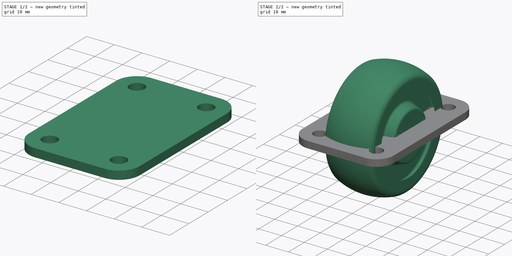
[diagram: build sequence overview — one tinted view per stage of 2, left to right]
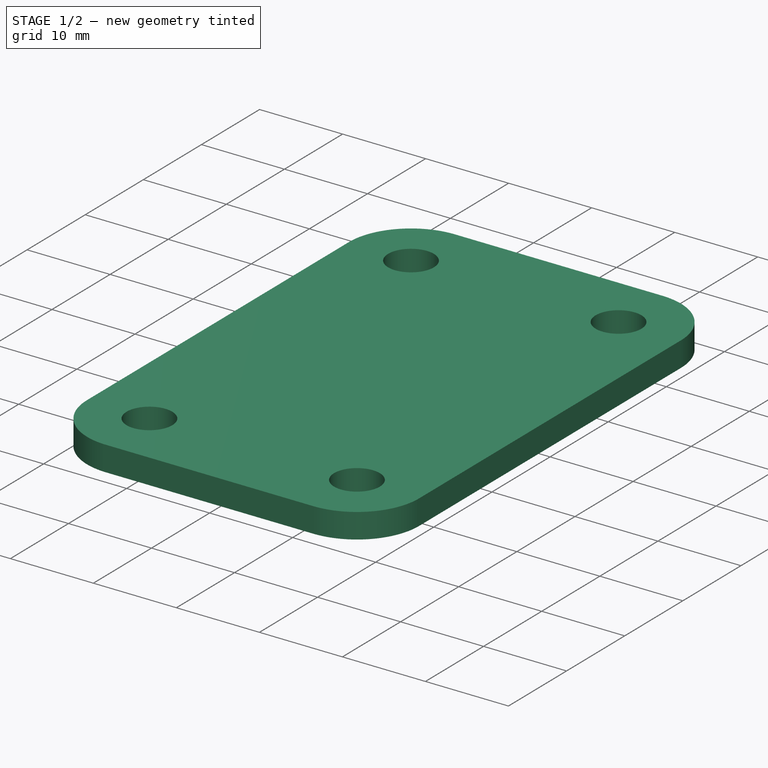
[diagram: stage 1 of 2 — iso view after this stage's code; geometry added in this stage tinted green]
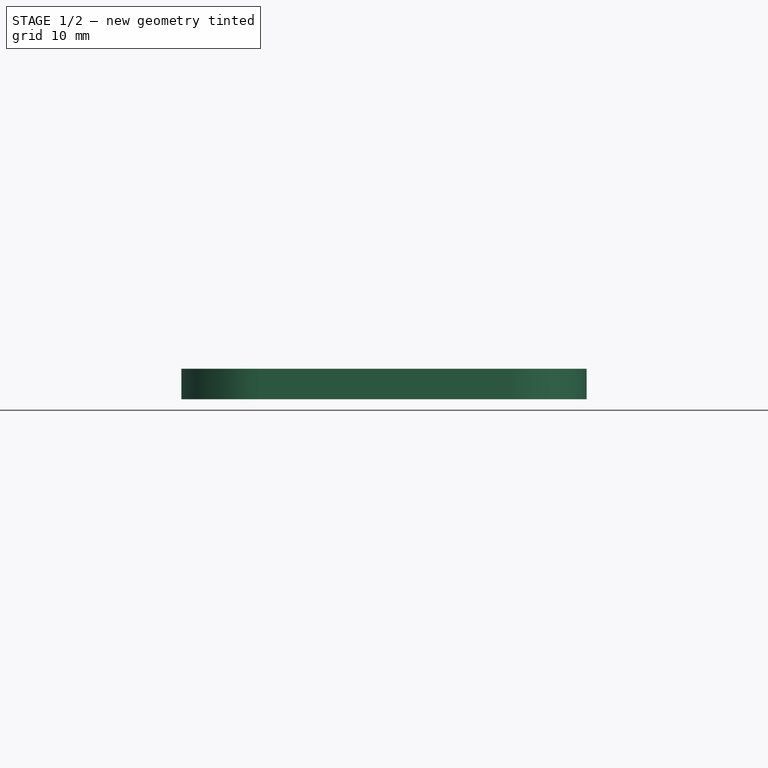
[diagram: stage 1 of 2 — front view after this stage's code; geometry added in this stage tinted green]
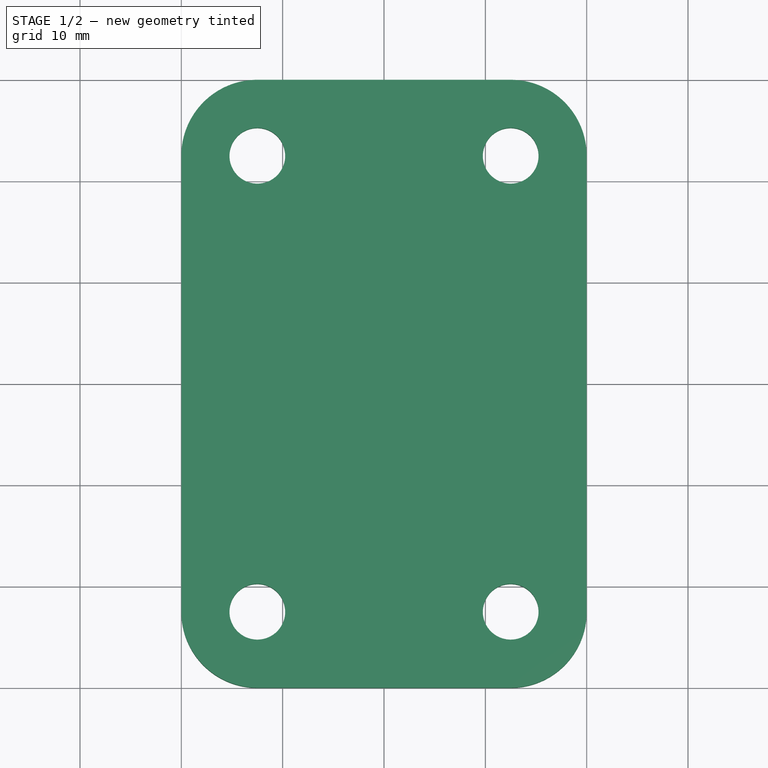
[diagram: stage 1 of 2 — top view after this stage's code; geometry added in this stage tinted green]
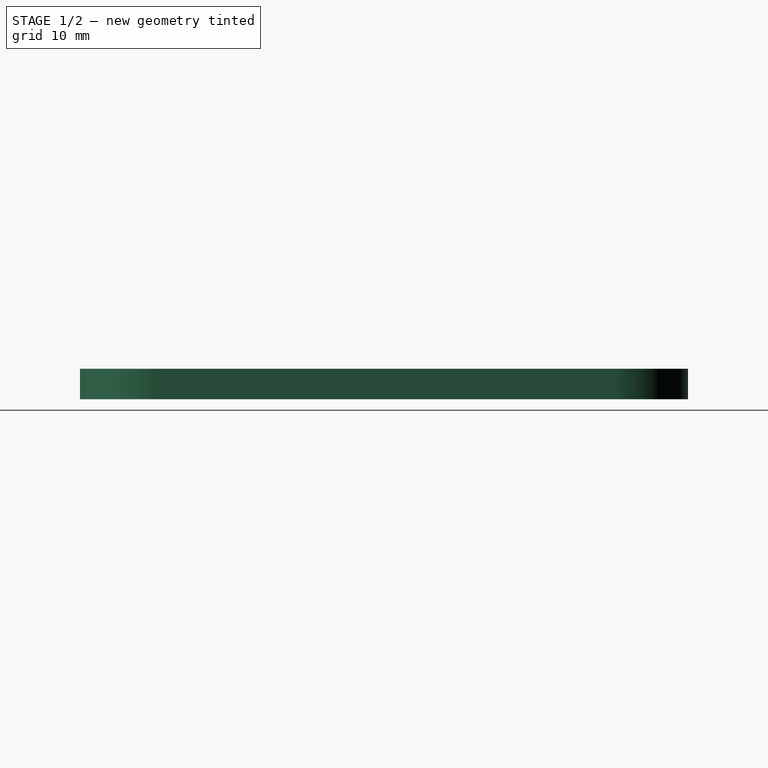
[diagram: stage 1 of 2 — right view after this stage's code; geometry added in this stage tinted green]
FCSTD DOCUMENT  (FreeCAD 0.21R32532 (Git))
Label: wheel25x45x64
License: All rights reserved
LicenseURL: http://en.wikipedia.org/wiki/All_rights_reserved
objects: Sketcher::SketchObject×3, Part::Mirroring×2, Part::Compound×2, PartDesign::Body×2, PartDesign::Revolution×1, PartDesign::Mirrored×1, Spreadsheet::Sheet×1, PartDesign::SubShapeBinder×1, PartDesign::Pad×1, PartDesign::Hole×1
note: 17 computed .brp shape members not serialized (recipe doc carries the construction recipe); baked Part::Feature solids carry a one-line shape summary decoded from their .brp

FEATURE [PartDesign::Body] Body
  Group = -> [Sketch001,Revolution,Mirrored]
  Origin = -> Origin
  Tip = -> Mirrored
FEATURE [Spreadsheet::Sheet] Spreadsheet  label="Properties"
  cells = B2(total_height)==64.5 mm; C2(wheel_d)==50 mm; D2(wheel_width)==21.5 mm
FEATURE [PartDesign::SubShapeBinder] Binder
  BindCopyOnChange = 0
  BindMode = 0
  ClaimChildren = false
  Context = -> Body001 [Binder.]
  Fuse = false
  MakeFace = false
  OffsetFill = false
  OffsetIntersection = false
  OffsetJoinType = 0
  OffsetOpenResult = false
  PartialLoad = false
  Relative = true
  Support = -> [Compound001]
  _Version = 2
FEATURE [Sketcher::SketchObject] Sketch002
  ExternalGeometry = -> [Binder]
  FullyConstrained = true
  MapMode = 5
  Support = -> [XY_Plane001]
  sketch-geometry (10):
    g0: ArcOfCircle CenterX=-12.5 CenterY=-22.5 CenterZ=0 NormalX=0 NormalY=0 NormalZ=1 AngleXU=0 Radius=7.5 StartAngle=3.14159 EndAngle=4.71239
    g1: LineSegment StartX=-20 StartY=-22.5 StartZ=0 EndX=-20 EndY=22.5 EndZ=0
    g2: ArcOfCircle CenterX=-12.5 CenterY=22.5 CenterZ=0 NormalX=0 NormalY=0 NormalZ=1 AngleXU=0 Radius=7.5 StartAngle=1.5708 EndAngle=3.14159
    g3: LineSegment StartX=-12.5 StartY=30 StartZ=0 EndX=12.5 EndY=30 EndZ=0
    g4: ArcOfCircle CenterX=12.5 CenterY=22.5 CenterZ=0 NormalX=0 NormalY=0 NormalZ=1 AngleXU=0 Radius=7.5 StartAngle=1e-16 EndAngle=1.5708
    g5: LineSegment StartX=20 StartY=22.5 StartZ=0 EndX=20 EndY=-22.5 EndZ=0
    g6: ArcOfCircle CenterX=12.5 CenterY=-22.5 CenterZ=0 NormalX=0 NormalY=0 NormalZ=1 AngleXU=0 Radius=7.5 StartAngle=4.71239 EndAngle=6.28319
    g7: LineSegment StartX=12.5 StartY=-30 StartZ=0 EndX=-12.5 EndY=-30 EndZ=0
    g8: GeomPoint X=-20 Y=-30 Z=0
    g9: GeomPoint X=20 Y=30 Z=0
  constraints (22):
    c: Tangent(g0,g1) = 1.5708
    c: Tangent(g1,g2) = 1.5708
    c: Tangent(g2,g3) = 1.5708
    c: Tangent(g3,g4) = 1.5708
    c: Tangent(g4,g5) = 1.5708
    c: Tangent(g5,g6) = 1.5708
    c: Tangent(g6,g7) = 1.5708
    c: Tangent(g7,g0) = 1.5708
    c: Horizontal(g3)
    c: Horizontal(g7)
    c: Vertical(g1)
    c: Vertical(g5)
    c: Equal(g0,g2)
    c: Equal(g2,g4)
    c: Equal(g4,g6)
    c: PointOnObject(g8,g1)
    c: PointOnObject(g8,g7)
    c: PointOnObject(g9,g3)
    c: PointOnObject(g9,g5)
    c: Symmetric(g9,g8,g-1)
    c: Coincident(g4,g-3)
    c: Diameter(g4) = 15
FEATURE [PartDesign::Pad] Pad
  Direction = (0,0,1)
  Length = 3
  Length2 = 10
  Profile = -> Sketch002
  ReferenceAxis = -> Sketch002 [N_Axis]
  Type = 0
FEATURE [PartDesign::Hole] Hole
  BaseFeature = -> Pad
  CustomThreadClearance = 0
  Depth = 25
  DepthType = 0
  Diameter = 5.5
  DrillForDepth = false
  DrillPoint = 1
  DrillPointAngle = 118
  HoleCutCountersinkAngle = 90
  HoleCutCustomValues = false
  HoleCutDepth = 0
  HoleCutDiameter = 6.1
  HoleCutType = 0
  ModelThread = false
  Profile = -> Binder
  Reversed = true
  Tapered = false
  TaperedAngle = 90
  ThreadClass = 0
  ThreadDepth = 25
  ThreadDepthType = 0
  ThreadDirection = 0
  ThreadFit = 0
  ThreadSize = 0
  ThreadType = 0
  Threaded = false
  UseCustomThreadClearance = false
FEATURE [PartDesign::Body] Body001
  Group = -> [Sketch002,Binder,Pad,Hole]
  Origin = -> Origin001
  Tip = -> Hole
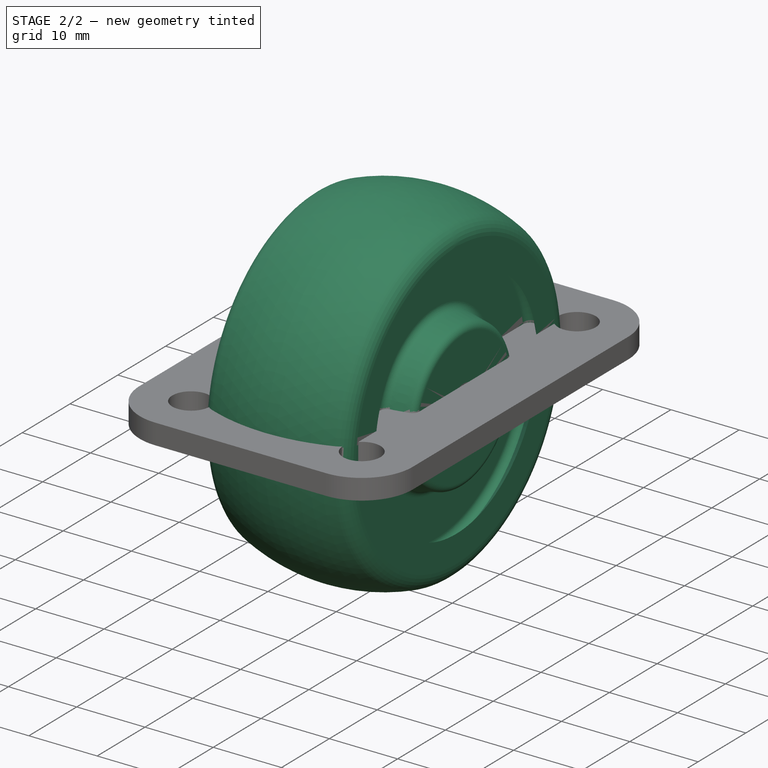
[diagram: stage 2 of 2 — iso view after this stage's code; geometry added in this stage tinted green]
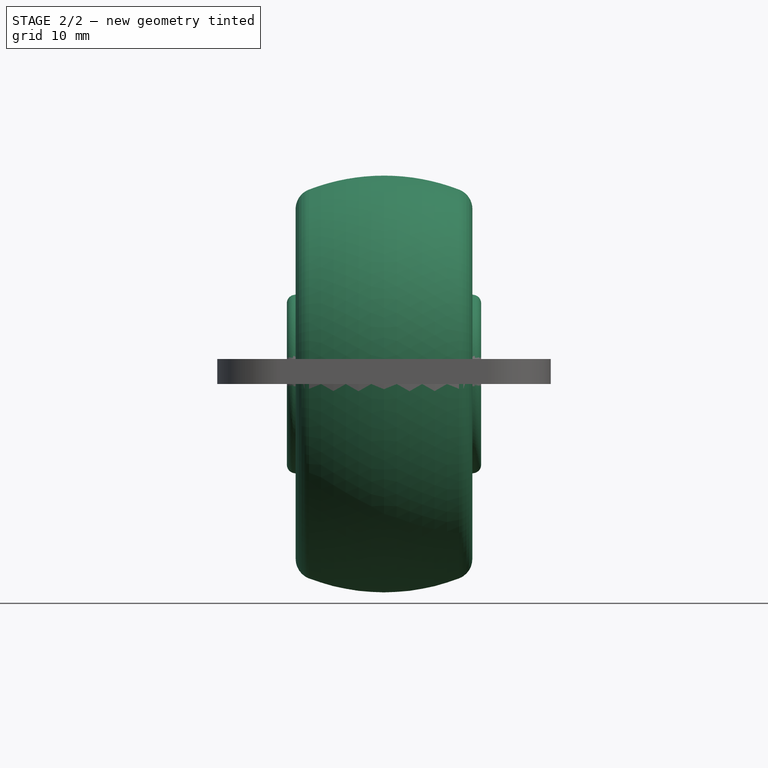
[diagram: stage 2 of 2 — front view after this stage's code; geometry added in this stage tinted green]
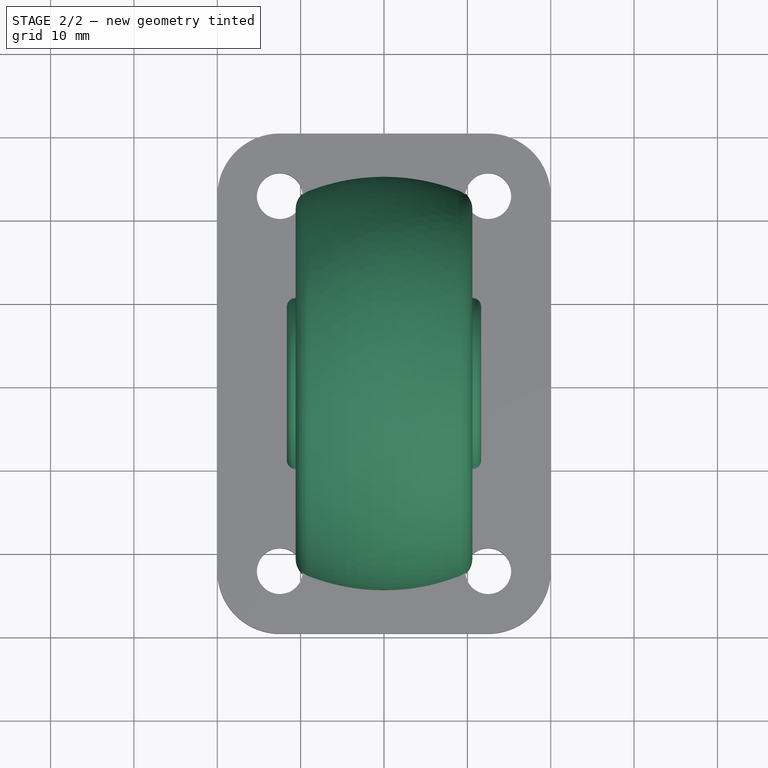
[diagram: stage 2 of 2 — top view after this stage's code; geometry added in this stage tinted green]
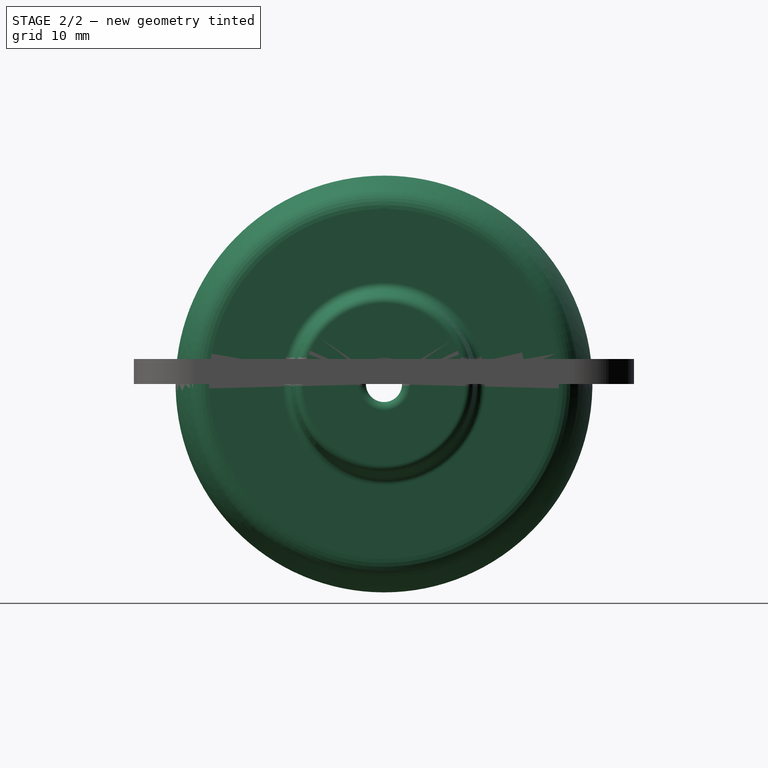
[diagram: stage 2 of 2 — right view after this stage's code; geometry added in this stage tinted green]
FEATURE [Sketcher::SketchObject] Sketch
  FullyConstrained = true
  sketch-geometry (1):
    g0: Circle CenterX=12.5 CenterY=22.5 CenterZ=0 NormalX=0 NormalY=0 NormalZ=1 AngleXU=0 Radius=2.75
  constraints (3):
    c: DistanceX(g0) = 12.5
    c: DistanceY(g0) = 22.5
    c: Diameter(g0) = 5.5
FEATURE [Part::Mirroring] Part__Mirroring  label="Sketch (Mirror #1)"
  Base = (0,0,0)
  Normal = (1,0,0)
  Source = -> Sketch
FEATURE [Part::Compound] Compound
  Links = -> [Part__Mirroring,Sketch]
FEATURE [Part::Mirroring] Part__Mirroring001  label="Compound (Mirror #2)"
  Base = (0,0,0)
  Normal = (0,1,0)
  Source = -> Compound
FEATURE [Part::Compound] Compound001  label="fix_holes"
  Links = -> [Part__Mirroring001,Compound]
FEATURE [Sketcher::SketchObject] Sketch001
  FullyConstrained = false
  MapMode = 5
  Placement = pos=(0,0,0) rot=(1,0,0;1.5708rad)
  Support = -> [XZ_Plane]
  sketch-geometry (13):
    g0: ArcOfCircle CenterX=0 CenterY=0 CenterZ=0 NormalX=0 NormalY=0 NormalZ=1 AngleXU=0 Radius=25 StartAngle=1.20253 EndAngle=1.5708
    g1: ArcOfCircle CenterX=8.1 CenterY=20.9914 CenterZ=0 NormalX=0 NormalY=0 NormalZ=1 AngleXU=0 Radius=2.5 StartAngle=0 EndAngle=1.20253
    g2: LineSegment StartX=10.6 StartY=20.9914 StartZ=0 EndX=10.6 EndY=16.9914 EndZ=0
    g3: ArcOfCircle CenterX=8.6 CenterY=18.4577 CenterZ=0 NormalX=0 NormalY=0 NormalZ=1 AngleXU=0 Radius=1 StartAngle=1.61686 EndAngle=3.14159
    g4: ArcOfCircle CenterX=8.6 CenterY=12.1577 CenterZ=0 NormalX=0 NormalY=0 NormalZ=1 AngleXU=0 Radius=1 StartAngle=3.14159 EndAngle=4.51182
    g5: ArcOfCircle CenterX=10.65 CenterY=9.7 CenterZ=0 NormalX=0 NormalY=0 NormalZ=1 AngleXU=0 Radius=1 StartAngle=0 EndAngle=1.37023
    g6: ArcOfCircle CenterX=10.65 CenterY=3.16511 CenterZ=0 NormalX=0 NormalY=0 NormalZ=1 AngleXU=0 Radius=1 StartAngle=4.71239 EndAngle=6.28319
    g7: LineSegment StartX=10.65 StartY=2.16511 StartZ=0 EndX=0 EndY=2.16511 EndZ=0
    g8: LineSegment StartX=11.65 StartY=3.16511 StartZ=0 EndX=11.65 EndY=9.7 EndZ=0
    g9: LineSegment StartX=10.8492 StartY=10.68 StartZ=0 EndX=8.40077 EndY=11.1777 EndZ=0
    g10: LineSegment StartX=7.6 StartY=12.1577 StartZ=0 EndX=7.6 EndY=18.4577 EndZ=0
    g11: LineSegment StartX=0 StartY=2.16511 StartZ=0 EndX=1.5e-15 EndY=25 EndZ=0
    g12: LineSegment StartX=8.55395 StartY=19.4566 StartZ=0 EndX=10.6 EndY=16.9914 EndZ=0
  constraints (32):
    c: Coincident(g0,g-1)
    c: PointOnObject(g0,g-2)
    c: Vertical(g2)
    c: PointOnObject(g7,g-2)
    c: Horizontal(g7)
    c: Vertical(g8)
    c: Vertical(g10)
    c: Tangent(g10,g4) = 1.5708
    c: Tangent(g9,g4) = 1.5708
    c: Tangent(g9,g5) = -1.5708
    c: Tangent(g8,g5) = -1.5708
    c: Tangent(g8,g6) = -1.5708
    c: Tangent(g7,g6) = 1.5708
    c: Tangent(g10,g3) = 1.5708
    c: Tangent(g2,g1) = 1.5708
    c: Tangent(g1,g0) = -1.5708
    c: Equal(g5,g4)
    c: Equal(g5,g3)
    c: Equal(g5,g6)
    c: Diameter(g5) = 2
    c: Diameter(g1) = 5
    c: DistanceX(g3,g2) = 3
    c: DistanceY(g0) = 25
    c: DistanceX(g1) = 10.6
    c: DistanceX(g6) = 11.65
    c: DistanceY(g2,g2) = 4
    c: DistanceY(g10,g10) = 6.3
    c: DistanceY(g5) = 9.7
    c: Coincident(g11,g7)
    c: Coincident(g11,g0)
    c: Coincident(g12,g3)
    c: Coincident(g12,g2)
FEATURE [PartDesign::Revolution] Revolution
  Angle = 360
  Axis = (1,0,0)
  Base = (0,0,0)
  Placement = pos=(0,0,0) rot=(1,0,0;1.5708rad)
  Profile = -> Sketch001
  ReferenceAxis = -> Sketch001 [H_Axis]
FEATURE [PartDesign::Mirrored] Mirrored
  BaseFeature = -> Revolution
  MirrorPlane = -> Sketch001 [V_Axis]
  Originals = -> [Revolution]
  Placement = pos=(0,0,0) rot=(1,0,0;1.5708rad)
  Refine = true
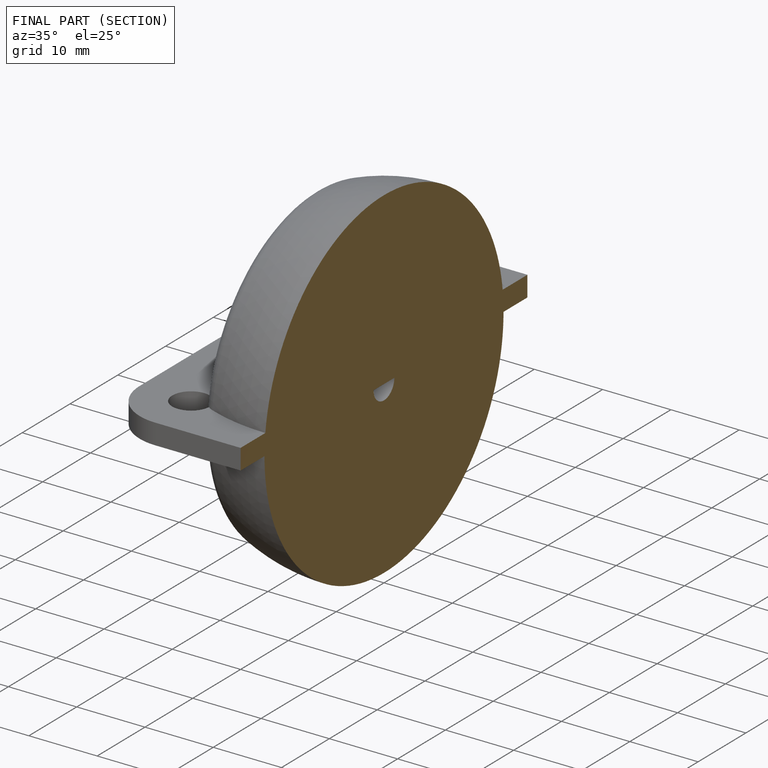
[diagram: finished part — half-section view (interior)]
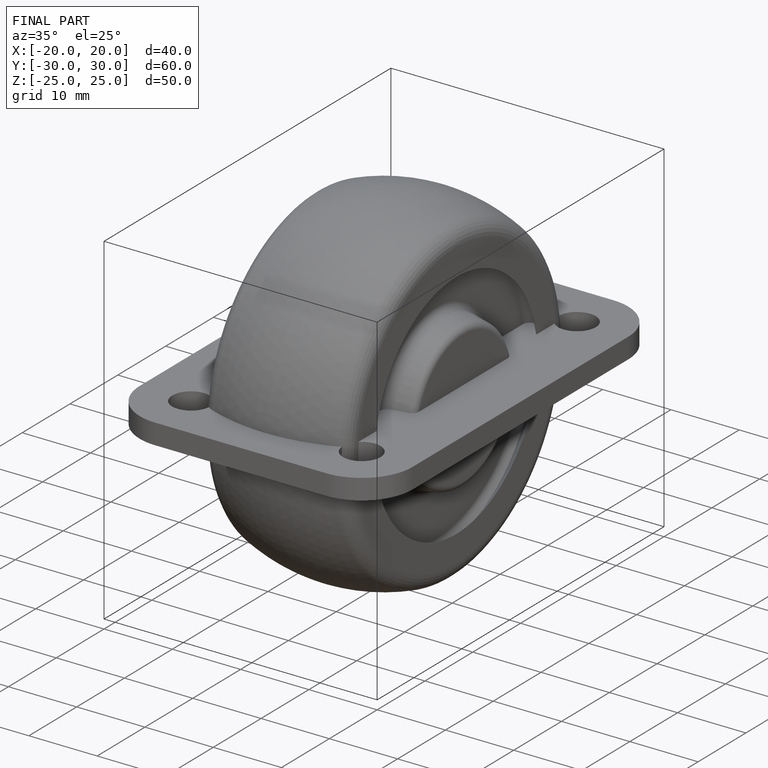
[diagram: finished part — iso view with bounding-box wireframe]
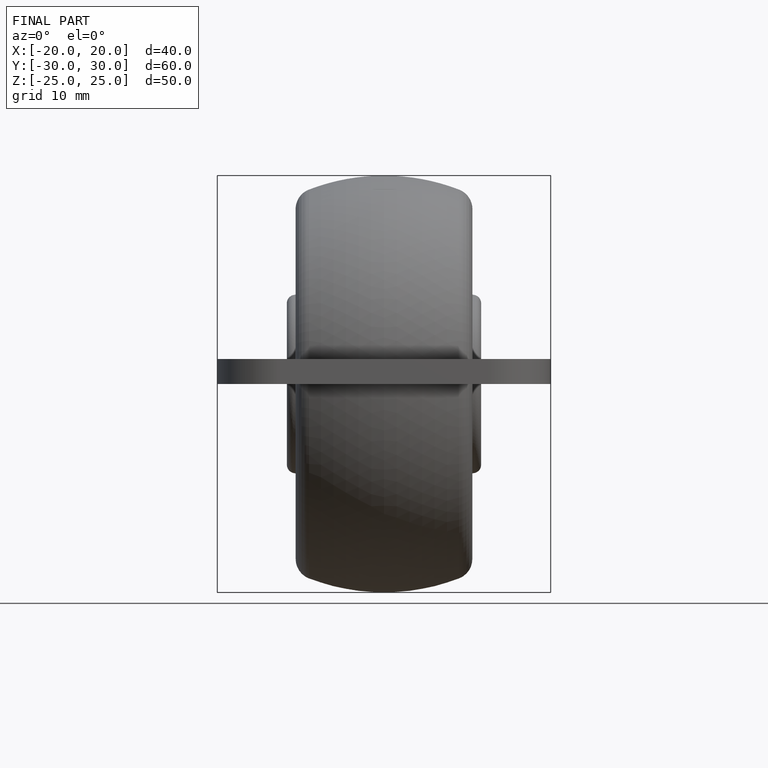
[diagram: finished part — front view with bounding-box wireframe]
